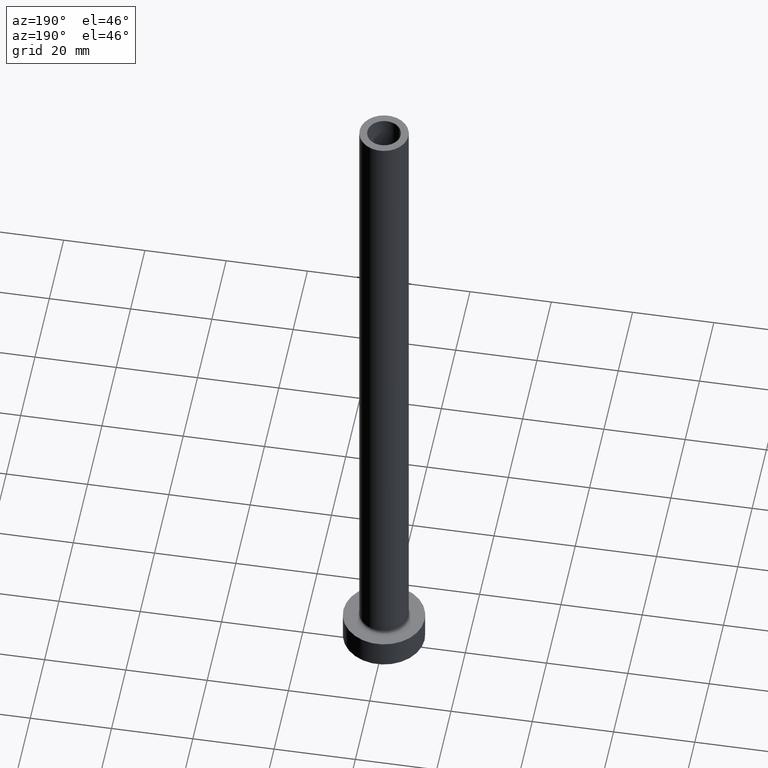
[diagram: clean part render]
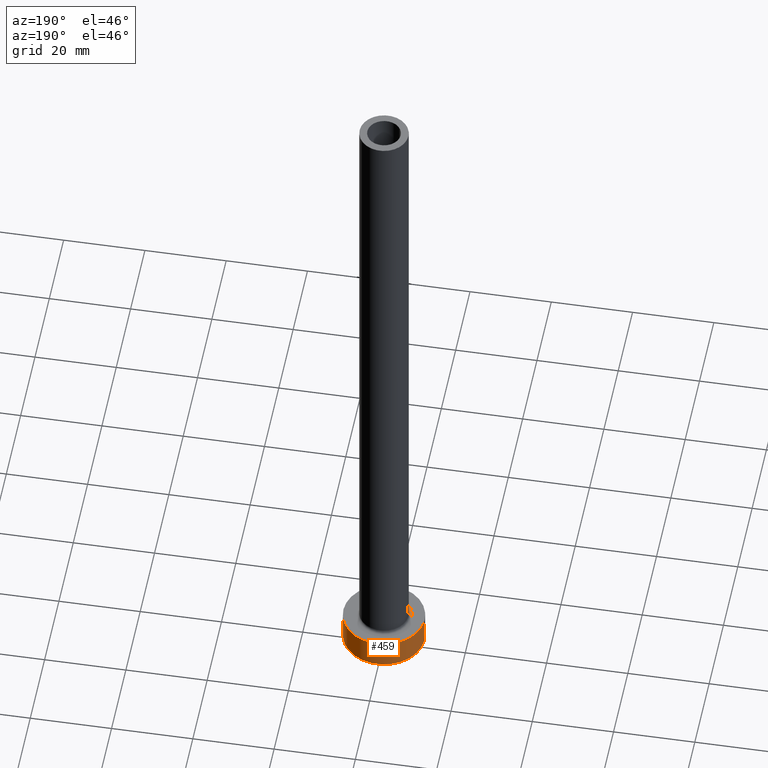
[diagram: same view with one face highlighted and labeled with its STEP entity id]
A machine part, auxiliary view. The second image highlights one B-rep face of the part: STEP entity #459.
In plain terms, the highlighted cylindrical surface (partial cylindrical patch) has radius 10 mm, axis along (-0, -0, -1).
Its self-contained STEP definition (entity closure, byte-faithful):
#3 = EDGE_CURVE ( 'NONE', #45, #122, #379, .T. ) ;
#12 = DIRECTION ( 'NONE',  ( -0.000000000000000000, -0.000000000000000000, -1.000000000000000000 ) ) ;
#23 = ORIENTED_EDGE ( 'NONE', *, *, #213, .T. ) ;
#37 = CARTESIAN_POINT ( 'NONE',  ( 10.00000000000000000, 1.224646799147353256E-15, 0.000000000000000000 ) ) ;
#45 = VERTEX_POINT ( 'NONE', #267 ) ;
#61 = FACE_OUTER_BOUND ( 'NONE', #449, .T. ) ;
#62 = VECTOR ( 'NONE', #12, 1000.000000000000000 ) ;
#81 = CARTESIAN_POINT ( 'NONE',  ( 10.00000000000000000, 1.224646799147353256E-15, 7.000000000000000000 ) ) ;
#84 = CIRCLE ( 'NONE', #390, 10.00000000000000000 ) ;
#94 = ORIENTED_EDGE ( 'NONE', *, *, #364, .T. ) ;
#121 = VERTEX_POINT ( 'NONE', #37 ) ;
#122 = VERTEX_POINT ( 'NONE', #168 ) ;
#141 = VECTOR ( 'NONE', #236, 1000.000000000000000 ) ;
#144 = DIRECTION ( 'NONE',  ( 1.000000000000000000, 0.000000000000000000, 0.000000000000000000 ) ) ;
#153 = AXIS2_PLACEMENT_3D ( 'NONE', #381, #203, #198 ) ;
#168 = CARTESIAN_POINT ( 'NONE',  ( -10.00000000000000000, 0.000000000000000000, 0.000000000000000000 ) ) ;
#176 = CIRCLE ( 'NONE', #351, 10.00000000000000000 ) ;
#198 = DIRECTION ( 'NONE',  ( -1.000000000000000000, 0.000000000000000000, 0.000000000000000000 ) ) ;
#203 = DIRECTION ( 'NONE',  ( -0.000000000000000000, -0.000000000000000000, -1.000000000000000000 ) ) ;
#213 = EDGE_CURVE ( 'NONE', #121, #122, #176, .T. ) ;
#231 = ORIENTED_EDGE ( 'NONE', *, *, #3, .F. ) ;
#233 = DIRECTION ( 'NONE',  ( 0.000000000000000000, 0.000000000000000000, 1.000000000000000000 ) ) ;
#235 = CARTESIAN_POINT ( 'NONE',  ( 10.00000000000000000, 1.224646799147353256E-15, 7.000000000000000000 ) ) ;
#236 = DIRECTION ( 'NONE',  ( -0.000000000000000000, -0.000000000000000000, -1.000000000000000000 ) ) ;
#244 = EDGE_CURVE ( 'NONE', #268, #45, #84, .T. ) ;
#261 = CARTESIAN_POINT ( 'NONE',  ( 0.000000000000000000, 0.000000000000000000, 7.000000000000000000 ) ) ;
#267 = CARTESIAN_POINT ( 'NONE',  ( -10.00000000000000000, 0.000000000000000000, 7.000000000000000000 ) ) ;
#268 = VERTEX_POINT ( 'NONE', #235 ) ;
#293 = CARTESIAN_POINT ( 'NONE',  ( 0.000000000000000000, 0.000000000000000000, 0.000000000000000000 ) ) ;
#325 = DIRECTION ( 'NONE',  ( 0.000000000000000000, 0.000000000000000000, 1.000000000000000000 ) ) ;
#350 = CYLINDRICAL_SURFACE ( 'NONE', #153, 10.00000000000000000 ) ;
#351 = AXIS2_PLACEMENT_3D ( 'NONE', #293, #325, #144 ) ;
#364 = EDGE_CURVE ( 'NONE', #268, #121, #403, .T. ) ;
#379 = LINE ( 'NONE', #417, #141 ) ;
#381 = CARTESIAN_POINT ( 'NONE',  ( 0.000000000000000000, 0.000000000000000000, 7.000000000000000000 ) ) ;
#390 = AXIS2_PLACEMENT_3D ( 'NONE', #261, #233, #410 ) ;
#403 = LINE ( 'NONE', #81, #62 ) ;
#406 = ORIENTED_EDGE ( 'NONE', *, *, #244, .F. ) ;
#410 = DIRECTION ( 'NONE',  ( 1.000000000000000000, 0.000000000000000000, 0.000000000000000000 ) ) ;
#417 = CARTESIAN_POINT ( 'NONE',  ( -10.00000000000000000, 0.000000000000000000, 7.000000000000000000 ) ) ;
#449 = EDGE_LOOP ( 'NONE', ( #406, #94, #23, #231 ) ) ;
#459 = ADVANCED_FACE ( 'NONE', ( #61 ), #350, .T. ) ;